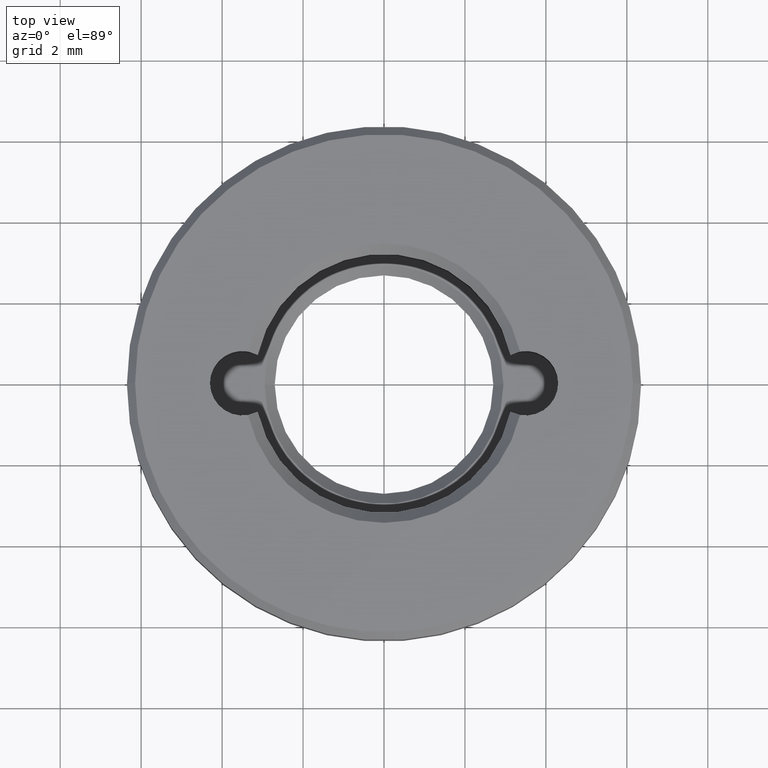
[diagram: clean part render]
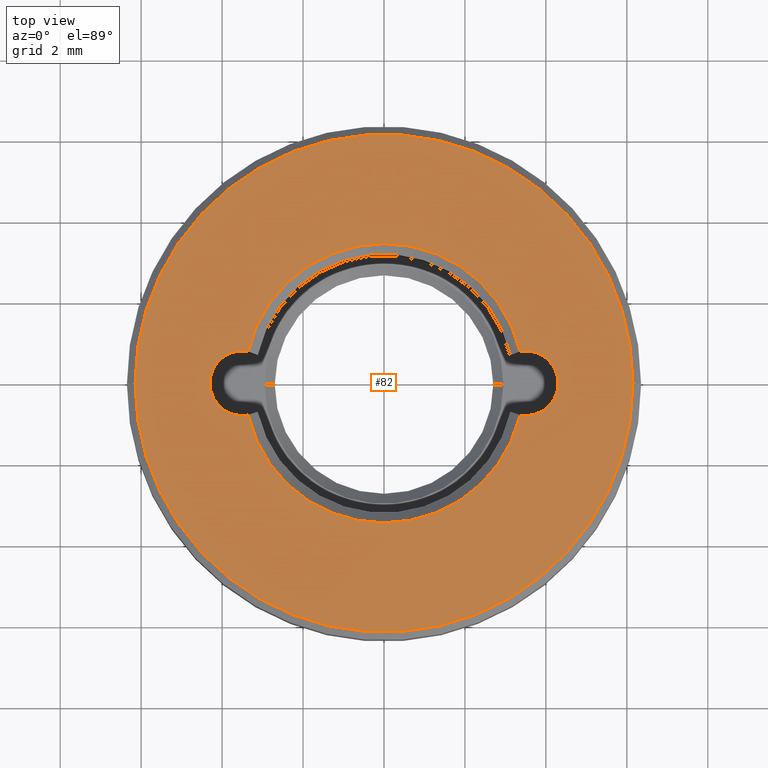
[diagram: same view with one face highlighted and labeled with its STEP entity id]
A machine part, top view. The second image highlights one B-rep face of the part: STEP entity #82.
In plain terms, the highlighted planar face has unit normal (0, 0, 1).
Its self-contained STEP definition (entity closure, byte-faithful):
#19 = EDGE_LOOP ( 'NONE', ( #374, #69 ) ) ;
#22 = DIRECTION ( 'NONE',  ( 1.000000000000000000, 0.000000000000000000, 0.000000000000000000 ) ) ;
#35 = DIRECTION ( 'NONE',  ( -1.000000000000000000, 0.000000000000000000, 0.000000000000000000 ) ) ;
#69 = ORIENTED_EDGE ( 'NONE', *, *, #545, .T. ) ;
#82 = ADVANCED_FACE ( 'NONE', ( #633, #307 ), #317, .T. ) ;
#104 = DIRECTION ( 'NONE',  ( 1.000000000000000000, 0.000000000000000000, 0.000000000000000000 ) ) ;
#120 = DIRECTION ( 'NONE',  ( 0.000000000000000000, 0.000000000000000000, 1.000000000000000000 ) ) ;
#125 = CARTESIAN_POINT ( 'NONE',  ( 0.000000000000000000, 0.000000000000000000, 2.200000000000000178 ) ) ;
#133 = CIRCLE ( 'NONE', #634, 3.450000000000003286 ) ;
#149 = DIRECTION ( 'NONE',  ( -1.000000000000000000, 0.000000000000000000, 0.000000000000000000 ) ) ;
#155 = EDGE_CURVE ( 'NONE', #468, #404, #314, .T. ) ;
#156 = DIRECTION ( 'NONE',  ( 0.000000000000000000, 0.000000000000000000, 1.000000000000000000 ) ) ;
#169 = AXIS2_PLACEMENT_3D ( 'NONE', #309, #427, #149 ) ;
#171 = ORIENTED_EDGE ( 'NONE', *, *, #434, .T. ) ;
#183 = EDGE_CURVE ( 'NONE', #527, #404, #133, .T. ) ;
#184 = CARTESIAN_POINT ( 'NONE',  ( 0.000000000000000000, 0.000000000000000000, 2.200000000000000178 ) ) ;
#187 = CARTESIAN_POINT ( 'NONE',  ( 4.300000000000000711, 4.286263797015736595E-16, 2.200000000000000178 ) ) ;
#191 = DIRECTION ( 'NONE',  ( 1.000000000000000000, 0.000000000000000000, -0.000000000000000000 ) ) ;
#194 = DIRECTION ( 'NONE',  ( 0.000000000000000000, 0.000000000000000000, 1.000000000000000000 ) ) ;
#196 = VERTEX_POINT ( 'NONE', #629 ) ;
#207 = CARTESIAN_POINT ( 'NONE',  ( 0.000000000000000000, 0.000000000000000000, 2.200000000000000178 ) ) ;
#214 = CARTESIAN_POINT ( 'NONE',  ( -3.500000000000000000, -4.286263797015736595E-16, 2.200000000000000178 ) ) ;
#224 = CIRCLE ( 'NONE', #621, 6.149999999999999467 ) ;
#229 = CARTESIAN_POINT ( 'NONE',  ( -3.358928571428574816, -0.7874635560080348595, 2.200000000000000178 ) ) ;
#234 = DIRECTION ( 'NONE',  ( 1.000000000000000000, 0.000000000000000000, 0.000000000000000000 ) ) ;
#287 = DIRECTION ( 'NONE',  ( 1.000000000000000000, 0.000000000000000000, 0.000000000000000000 ) ) ;
#294 = CARTESIAN_POINT ( 'NONE',  ( 3.358928571428574816, 0.7874635560080348595, 2.200000000000000178 ) ) ;
#296 = ORIENTED_EDGE ( 'NONE', *, *, #616, .F. ) ;
#307 = FACE_OUTER_BOUND ( 'NONE', #19, .T. ) ;
#309 = CARTESIAN_POINT ( 'NONE',  ( 3.500000000000000000, 4.286263797015736595E-16, 2.200000000000000178 ) ) ;
#311 = EDGE_LOOP ( 'NONE', ( #296, #171, #363, #399, #419 ) ) ;
#314 = CIRCLE ( 'NONE', #460, 0.8000000000000008216 ) ;
#317 = PLANE ( 'NONE',  #420 ) ;
#323 = AXIS2_PLACEMENT_3D ( 'NONE', #184, #403, #22 ) ;
#333 = CIRCLE ( 'NONE', #436, 0.8000000000000008216 ) ;
#354 = VERTEX_POINT ( 'NONE', #539 ) ;
#363 = ORIENTED_EDGE ( 'NONE', *, *, #704, .F. ) ;
#369 = CARTESIAN_POINT ( 'NONE',  ( 0.000000000000000000, 0.000000000000000000, 2.200000000000000178 ) ) ;
#374 = ORIENTED_EDGE ( 'NONE', *, *, #393, .T. ) ;
#377 = DIRECTION ( 'NONE',  ( -0.000000000000000000, -0.000000000000000000, -1.000000000000000000 ) ) ;
#393 = EDGE_CURVE ( 'NONE', #354, #432, #541, .T. ) ;
#399 = ORIENTED_EDGE ( 'NONE', *, *, #183, .T. ) ;
#403 = DIRECTION ( 'NONE',  ( -0.000000000000000000, -0.000000000000000000, -1.000000000000000000 ) ) ;
#404 = VERTEX_POINT ( 'NONE', #294 ) ;
#419 = ORIENTED_EDGE ( 'NONE', *, *, #155, .F. ) ;
#420 = AXIS2_PLACEMENT_3D ( 'NONE', #369, #194, #191 ) ;
#427 = DIRECTION ( 'NONE',  ( 0.000000000000000000, 0.000000000000000000, 1.000000000000000000 ) ) ;
#432 = VERTEX_POINT ( 'NONE', #673 ) ;
#433 = DIRECTION ( 'NONE',  ( 0.000000000000000000, 0.000000000000000000, 1.000000000000000000 ) ) ;
#434 = EDGE_CURVE ( 'NONE', #196, #534, #636, .T. ) ;
#436 = AXIS2_PLACEMENT_3D ( 'NONE', #214, #433, #658 ) ;
#443 = CIRCLE ( 'NONE', #169, 0.8000000000000008216 ) ;
#447 = CARTESIAN_POINT ( 'NONE',  ( 0.000000000000000000, 0.000000000000000000, 2.200000000000000178 ) ) ;
#460 = AXIS2_PLACEMENT_3D ( 'NONE', #647, #156, #35 ) ;
#468 = VERTEX_POINT ( 'NONE', #187 ) ;
#503 = DIRECTION ( 'NONE',  ( 0.000000000000000000, 0.000000000000000000, 1.000000000000000000 ) ) ;
#527 = VERTEX_POINT ( 'NONE', #557 ) ;
#534 = VERTEX_POINT ( 'NONE', #229 ) ;
#539 = CARTESIAN_POINT ( 'NONE',  ( -6.149999999999999467, 0.000000000000000000, 2.200000000000000178 ) ) ;
#541 = CIRCLE ( 'NONE', #598, 6.149999999999999467 ) ;
#545 = EDGE_CURVE ( 'NONE', #432, #354, #224, .T. ) ;
#557 = CARTESIAN_POINT ( 'NONE',  ( -3.358928571428574816, 0.7874635560080339713, 2.200000000000000178 ) ) ;
#598 = AXIS2_PLACEMENT_3D ( 'NONE', #125, #503, #234 ) ;
#616 = EDGE_CURVE ( 'NONE', #196, #468, #443, .T. ) ;
#621 = AXIS2_PLACEMENT_3D ( 'NONE', #447, #120, #287 ) ;
#629 = CARTESIAN_POINT ( 'NONE',  ( 3.358928571428574816, -0.7874635560080339713, 2.200000000000000178 ) ) ;
#633 = FACE_BOUND ( 'NONE', #311, .T. ) ;
#634 = AXIS2_PLACEMENT_3D ( 'NONE', #207, #377, #104 ) ;
#636 = CIRCLE ( 'NONE', #323, 3.450000000000003286 ) ;
#647 = CARTESIAN_POINT ( 'NONE',  ( 3.500000000000000000, 4.286263797015736595E-16, 2.200000000000000178 ) ) ;
#658 = DIRECTION ( 'NONE',  ( 1.000000000000000000, 0.000000000000000000, 0.000000000000000000 ) ) ;
#673 = CARTESIAN_POINT ( 'NONE',  ( 6.149999999999999467, 7.654042494670954648E-16, 2.200000000000000178 ) ) ;
#704 = EDGE_CURVE ( 'NONE', #527, #534, #333, .T. ) ;